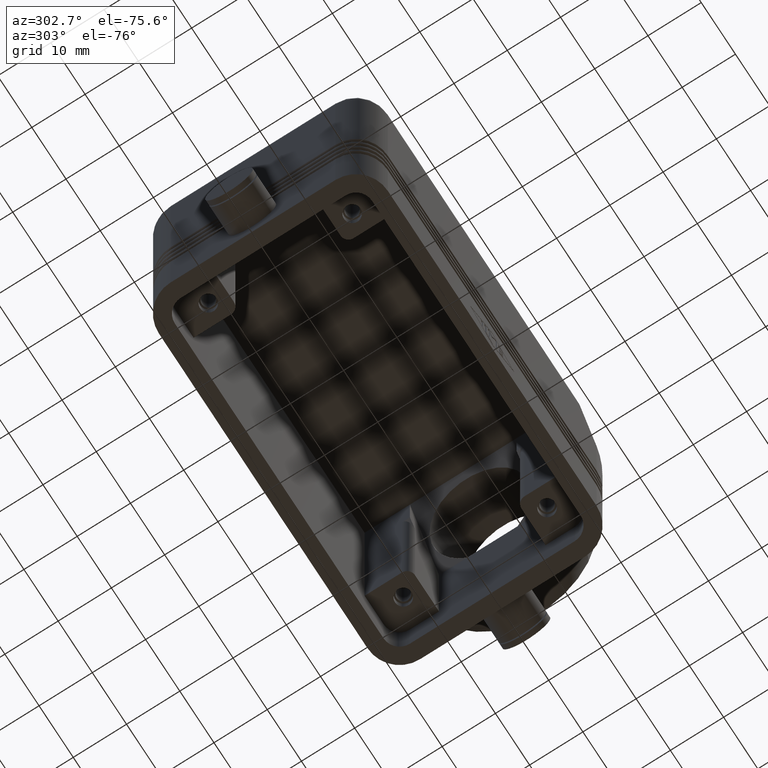
[diagram: clean part render]
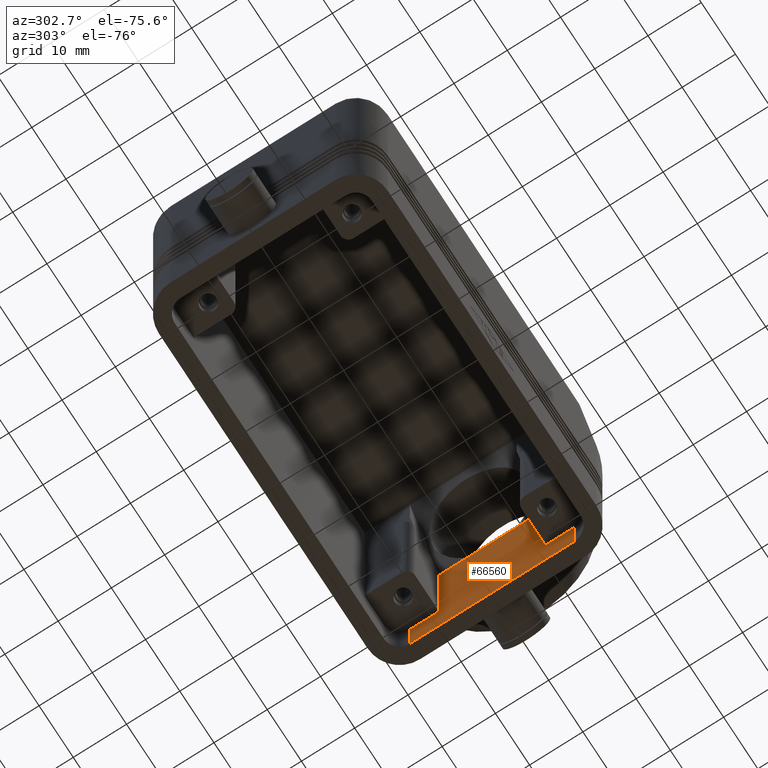
[diagram: same view with one face highlighted and labeled with its STEP entity id]
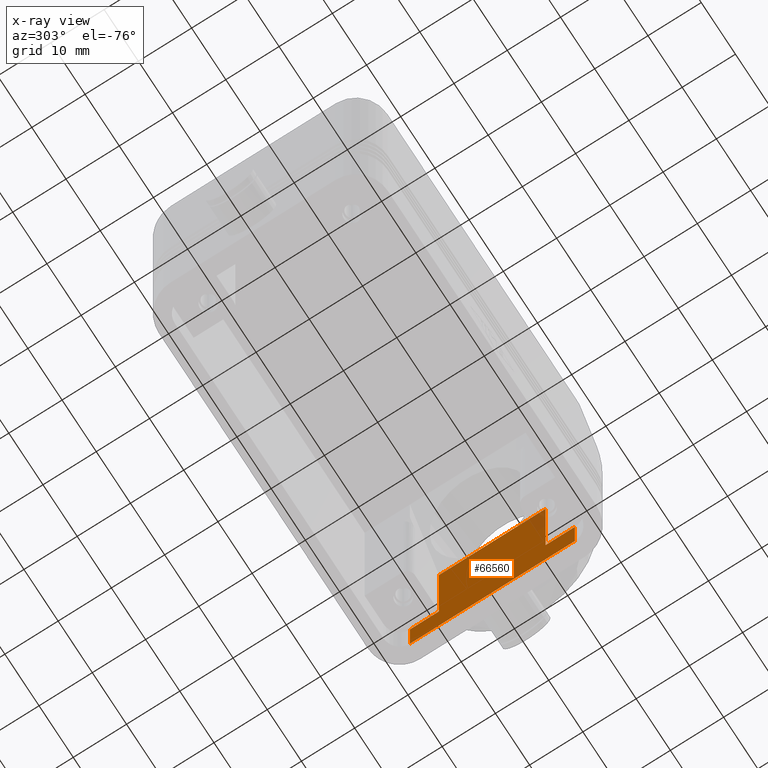
[diagram: x-ray of the same camera — body ghosted, the highlighted face saturated]
A machine part, auxiliary view. The second image highlights one B-rep face of the part: STEP entity #66560.
The next image is the same camera in x-ray: the body ghosted, the highlighted face saturated — about 4% of this face is hidden behind the body in this view.
In plain terms, the highlighted planar face has unit normal (-1, 0, 0).
Its self-contained STEP definition (entity closure, byte-faithful):
#3780=CARTESIAN_POINT('',(33.5,15.5,9.));
#3790=VERTEX_POINT('',#3780);
#3820=CARTESIAN_POINT('',(33.5,15.5,0.));
#3830=DIRECTION('',(0.,0.,1.));
#3840=VECTOR('',#3830,1.);
#3850=LINE('',#3820,#3840);
#3860=CARTESIAN_POINT('',(33.5,15.5,0.));
#3870=VERTEX_POINT('',#3860);
#3880=EDGE_CURVE('',#3870,#3790,#3850,.T.);
#4270=CARTESIAN_POINT('',(33.5,-15.5,0.));
#4280=VERTEX_POINT('',#4270);
#4310=CARTESIAN_POINT('',(33.5,-15.5,9.));
#4320=DIRECTION('',(0.,0.,-1.));
#4330=VECTOR('',#4320,1.);
#4340=LINE('',#4310,#4330);
#4350=CARTESIAN_POINT('',(33.5,-15.5,9.));
#4360=VERTEX_POINT('',#4350);
#4370=EDGE_CURVE('',#4360,#4280,#4340,.T.);
#62250=CARTESIAN_POINT('',(33.5,-10.,32.0455585291552));
#62260=VERTEX_POINT('',#62250);
#62290=CARTESIAN_POINT('',(33.5,0.,32.0455585291553));
#62300=DIRECTION('',(0.,1.,0.));
#62310=VECTOR('',#62300,1.);
#62320=LINE('',#62290,#62310);
#62330=CARTESIAN_POINT('',(33.5,-4.74982377024263,32.0455585291553));
#62340=VERTEX_POINT('',#62330);
#62350=EDGE_CURVE('',#62260,#62340,#62320,.T.);
#62500=CARTESIAN_POINT('',(33.5,4.74982377024263,32.0455585291553));
#62510=VERTEX_POINT('',#62500);
#62540=CARTESIAN_POINT('',(33.5,10.,32.0455585291552));
#62550=VERTEX_POINT('',#62540);
#62560=EDGE_CURVE('',#62510,#62550,#62320,.T.);
#65850=CARTESIAN_POINT('',(33.5,-10.,9.));
#65860=VERTEX_POINT('',#65850);
#65890=CARTESIAN_POINT('',(33.5,-10.,0.));
#65900=DIRECTION('',(-0.,-0.,-1.));
#65910=VECTOR('',#65900,1.);
#65920=LINE('',#65890,#65910);
#65930=EDGE_CURVE('',#62260,#65860,#65920,.T.);
#66120=CARTESIAN_POINT('',(33.5,-18.6,-3.20455585291552));
#66130=DIRECTION('',(-1.,0.,0.));
#66140=DIRECTION('',(0.,1.,0.));
#66150=AXIS2_PLACEMENT_3D('',#66120,#66130,#66140);
#66160=PLANE('',#66150);
#66170=CARTESIAN_POINT('',(33.5,0.,32.0455585291553));
#66180=DIRECTION('',(0.,-1.,-0.));
#66190=VECTOR('',#66180,1.);
#66200=LINE('',#66170,#66190);
#66210=EDGE_CURVE('',#62510,#62340,#66200,.T.);
#66220=ORIENTED_EDGE('',*,*,#66210,.F.);
#66230=ORIENTED_EDGE('',*,*,#62350,.T.);
#66240=ORIENTED_EDGE('',*,*,#65930,.F.);
#66250=CARTESIAN_POINT('',(33.5,0.,9.));
#66260=DIRECTION('',(-0.,1.,0.));
#66270=VECTOR('',#66260,1.);
#66280=LINE('',#66250,#66270);
#66290=EDGE_CURVE('',#4360,#65860,#66280,.T.);
#66300=ORIENTED_EDGE('',*,*,#66290,.T.);
#66310=ORIENTED_EDGE('',*,*,#4370,.F.);
#66320=CARTESIAN_POINT('',(33.5,0.,1.33226762955019E-14));
#66330=DIRECTION('',(-0.,1.,0.));
#66340=VECTOR('',#66330,1.);
#66350=LINE('',#66320,#66340);
#66360=EDGE_CURVE('',#4280,#3870,#66350,.T.);
#66370=ORIENTED_EDGE('',*,*,#66360,.F.);
#66380=ORIENTED_EDGE('',*,*,#3880,.F.);
#66390=CARTESIAN_POINT('',(33.5,0.,9.));
#66400=DIRECTION('',(-0.,1.,0.));
#66410=VECTOR('',#66400,1.);
#66420=LINE('',#66390,#66410);
#66430=CARTESIAN_POINT('',(33.5,10.,9.));
#66440=VERTEX_POINT('',#66430);
#66450=EDGE_CURVE('',#66440,#3790,#66420,.T.);
#66460=ORIENTED_EDGE('',*,*,#66450,.T.);
#66470=CARTESIAN_POINT('',(33.5,10.,0.));
#66480=DIRECTION('',(0.,0.,1.));
#66490=VECTOR('',#66480,1.);
#66500=LINE('',#66470,#66490);
#66510=EDGE_CURVE('',#66440,#62550,#66500,.T.);
#66520=ORIENTED_EDGE('',*,*,#66510,.F.);
#66530=ORIENTED_EDGE('',*,*,#62560,.T.);
#66540=EDGE_LOOP('',(#66530,#66520,#66460,#66380,#66370,#66310,#66300,
#66240,#66230,#66220));
#66550=FACE_OUTER_BOUND('',#66540,.T.);
#66560=ADVANCED_FACE('',(#66550),#66160,.T.);